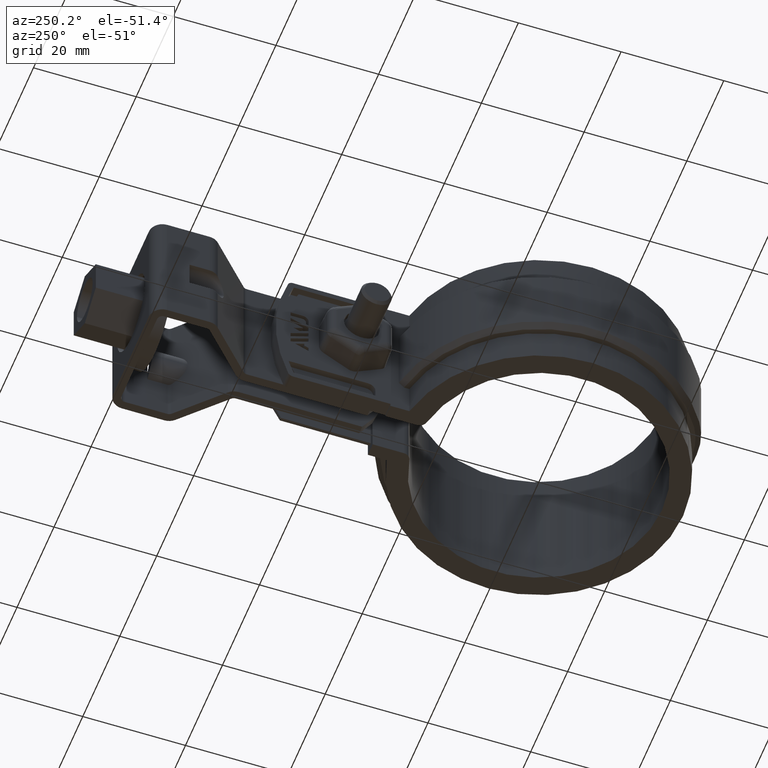
[diagram: clean part render]
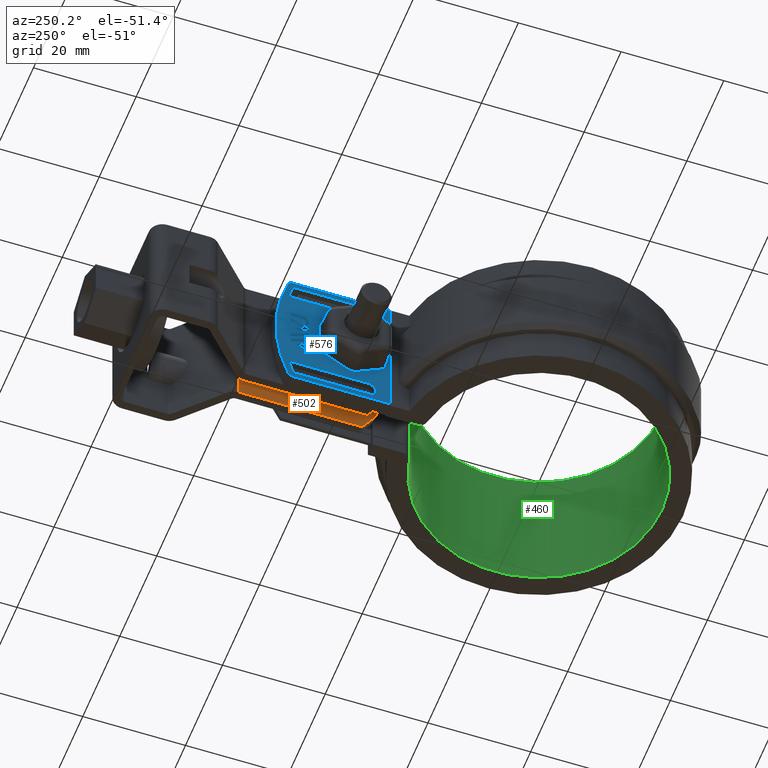
[diagram: same view with three faces highlighted in distinct colors, each labeled with its STEP entity id]
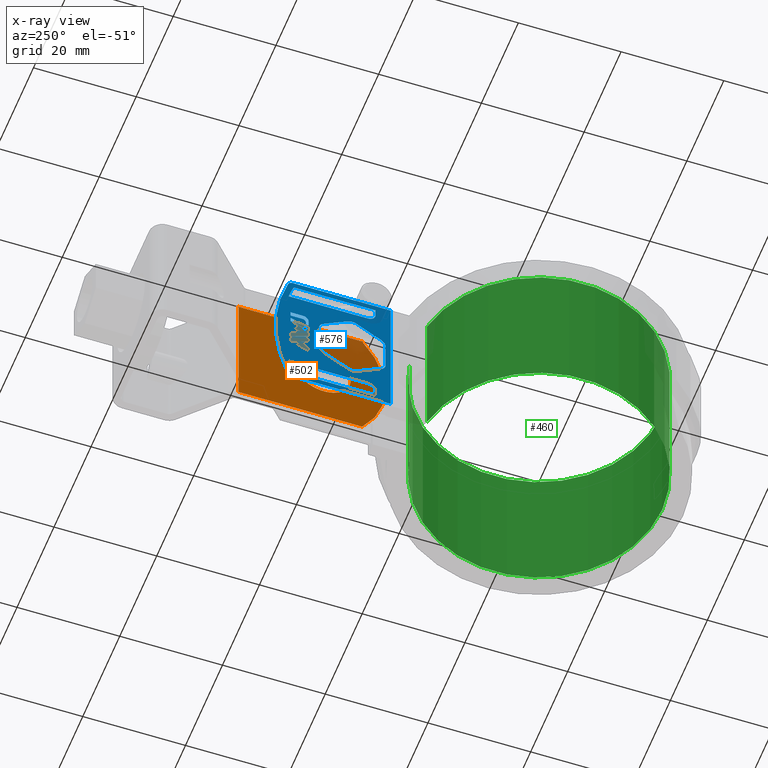
[diagram: x-ray of the same camera — body ghosted, the three highlighted faces saturated]
A machine part, auxiliary view with three faces highlighted in distinct colors.
The next image is the same camera in x-ray (body ghosted, the three faces saturated) — at least one of them is partly hidden behind the body in this view.
Their STEP definitions:

[orange] entity #502 — the highlighted planar face has unit normal (-1, -0, 0).
#502 = ADVANCED_FACE( '', ( #997, #998 ), #999, .T. );
#997 = FACE_OUTER_BOUND( '', #2338, .T. );
#998 = FACE_BOUND( '', #2339, .T. );
#999 = PLANE( '', #2340 );
#2338 = EDGE_LOOP( '', ( #5430, #5431, #5432, #5433 ) );
#2339 = EDGE_LOOP( '', ( #5434 ) );
#2340 = AXIS2_PLACEMENT_3D( '', #5435, #5436, #5437 );
#5430 = ORIENTED_EDGE( '', *, *, #7574, .F. );
#5431 = ORIENTED_EDGE( '', *, *, #7575, .F. );
#5432 = ORIENTED_EDGE( '', *, *, #7558, .T. );
#5433 = ORIENTED_EDGE( '', *, *, #7576, .F. );
#5434 = ORIENTED_EDGE( '', *, *, #7577, .F. );
#5435 = CARTESIAN_POINT( '', ( 1.39999999946985, 29.3998007421670, -25.0000000460597 ) );
#5436 = DIRECTION( '', ( -1.00000000000000, -3.46797421634620E-012, 2.03759782706166E-012 ) );
#5437 = DIRECTION( '', ( -3.46797421634620E-012, 1.00000000000000, 8.22979208362101E-040 ) );
#7558 = EDGE_CURVE( '', #8810, #8808, #8811, .F. );
#7574 = EDGE_CURVE( '', #8841, #8842, #8843, .T. );
#7575 = EDGE_CURVE( '', #8810, #8841, #8844, .F. );
#7576 = EDGE_CURVE( '', #8842, #8808, #8845, .T. );
#7577 = EDGE_CURVE( '', #8846, #8846, #8847, .T. );
#8808 = VERTEX_POINT( '', #12238 );
#8810 = VERTEX_POINT( '', #12240 );
#8811 = LINE( '', #12241, #12242 );
#8841 = VERTEX_POINT( '', #12281 );
#8842 = VERTEX_POINT( '', #12282 );
#8843 = LINE( '', #12283, #12284 );
#8844 = CIRCLE( '', #12285, 19.6111110000000 );
#8845 = LINE( '', #12286, #12287 );
#8846 = VERTEX_POINT( '', #12288 );
#8847 = CIRCLE( '', #12289, 5.25000000000000 );
#12238 = CARTESIAN_POINT( '', ( 1.39999999942177, 57.9539471291845, -6.05897380538416E-008 ) );
#12240 = CARTESIAN_POINT( '', ( 1.39999999950519, 33.8998007879764, -4.83496375949690E-008 ) );
#12241 = CARTESIAN_POINT( '', ( 1.39999999952079, 29.3998007548884, -4.60597844587074E-008 ) );
#12242 = VECTOR( '', #14111, 1000.00000000000 );
#12281 = CARTESIAN_POINT( '', ( 1.39999999945424, 33.8998007752552, -25.0000000483497 ) );
#12282 = CARTESIAN_POINT( '', ( 1.39999999937083, 57.9539471164631, -25.0000000605898 ) );
#12283 = CARTESIAN_POINT( '', ( 1.39999999930547, 76.7998007421666, -25.0000000701796 ) );
#12284 = VECTOR( '', #14139, 1000.00000000000 );
#12285 = AXIS2_PLACEMENT_3D( '', #14140, #14141, #14142 );
#12286 = CARTESIAN_POINT( '', ( 1.39999999937083, 57.9539471164631, -25.0000000605897 ) );
#12287 = VECTOR( '', #14143, 1000.00000000000 );
#12288 = CARTESIAN_POINT( '', ( 1.39999999947191, 36.1498007485275, -12.5000000521660 ) );
#12289 = AXIS2_PLACEMENT_3D( '', #14144, #14145, #14146 );
#14111 = DIRECTION( '', ( 3.46797421738304E-012, -1.00000000000000, 5.08856068393042E-010 ) );
#14139 = DIRECTION( '', ( -3.46797421738304E-012, 1.00000000000000, -5.08856068393042E-010 ) );
#14140 = CARTESIAN_POINT( '', ( 1.39999999942731, 49.0109117485275, -12.5000000560390 ) );
#14141 = DIRECTION( '', ( -1.00000000000000, -3.46797421634620E-012, 2.03759782706166E-012 ) );
#14142 = DIRECTION( '', ( 3.46797421634620E-012, -1.00000000000000, 0.000000000000000 ) );
#14143 = DIRECTION( '', ( 2.03759782529696E-012, 5.08856008656156E-010, 1.00000000000000 ) );
#14144 = CARTESIAN_POINT( '', ( 1.39999999945370, 41.3998007485275, -12.5000000521660 ) );
#14145 = DIRECTION( '', ( -1.00000000000000, -3.46797421634620E-012, 2.03759782706166E-012 ) );
#14146 = DIRECTION( '', ( 3.46797421634620E-012, -1.00000000000000, 0.000000000000000 ) );

[blue] entity #576 — the highlighted planar face has unit normal (-1, 0, -0).
#576 = ADVANCED_FACE( '', ( #1166, #1167, #1168, #1169, #1170, #1171, #1172, #1173, #1174 ), #1175, .T. );
#1166 = FACE_OUTER_BOUND( '', #2595, .T. );
#1167 = FACE_BOUND( '', #2596, .T. );
#1168 = FACE_BOUND( '', #2597, .T. );
#1169 = FACE_BOUND( '', #2598, .T. );
#1170 = FACE_BOUND( '', #2599, .T. );
#1171 = FACE_BOUND( '', #2600, .T. );
#1172 = FACE_BOUND( '', #2601, .T. );
#1173 = FACE_BOUND( '', #2602, .T. );
#1174 = FACE_BOUND( '', #2603, .T. );
#1175 = PLANE( '', #2604 );
#2595 = EDGE_LOOP( '', ( #6101, #6102, #6103, #6104, #6105, #6106 ) );
#2596 = EDGE_LOOP( '', ( #6107, #6108, #6109, #6110, #6111 ) );
#2597 = EDGE_LOOP( '', ( #6112, #6113, #6114, #6115 ) );
#2598 = EDGE_LOOP( '', ( #6116, #6117, #6118, #6119, #6120, #6121, #6122, #6123, #6124, #6125, #6126, #6127 ) );
#2599 = EDGE_LOOP( '', ( #6128, #6129, #6130, #6131, #6132 ) );
#2600 = EDGE_LOOP( '', ( #6133, #6134, #6135, #6136, #6137 ) );
#2601 = EDGE_LOOP( '', ( #6138, #6139, #6140, #6141, #6142, #6143, #6144, #6145, #6146, #6147, #6148, #6149, #6150, #6151, #6152, #6153, #6154, #6155, #6156, #6157, #6158, #6159, #6160, #6161, #6162, #6163, #6164, #6165, #6166, #6167, #6168, #6169, #6170, #6171, #6172, #6173, #6174, #6175, #6176, #6177 ) );
#2602 = EDGE_LOOP( '', ( #6178, #6179, #6180, #6181, #6182, #6183, #6184 ) );
#2603 = EDGE_LOOP( '', ( #6185, #6186, #6187, #6188 ) );
#2604 = AXIS2_PLACEMENT_3D( '', #6189, #6190, #6191 );
#6101 = ORIENTED_EDGE( '', *, *, #7850, .T. );
#6102 = ORIENTED_EDGE( '', *, *, #7851, .T. );
#6103 = ORIENTED_EDGE( '', *, *, #7852, .T. );
#6104 = ORIENTED_EDGE( '', *, *, #7853, .T. );
#6105 = ORIENTED_EDGE( '', *, *, #7854, .T. );
#6106 = ORIENTED_EDGE( '', *, *, #7855, .T. );
#6107 = ORIENTED_EDGE( '', *, *, #7856, .T. );
#6108 = ORIENTED_EDGE( '', *, *, #7782, .T. );
#6109 = ORIENTED_EDGE( '', *, *, #7785, .T. );
#6110 = ORIENTED_EDGE( '', *, *, #7857, .T. );
#6111 = ORIENTED_EDGE( '', *, *, #7858, .T. );
#6112 = ORIENTED_EDGE( '', *, *, #7859, .T. );
#6113 = ORIENTED_EDGE( '', *, *, #7860, .T. );
#6114 = ORIENTED_EDGE( '', *, *, #7861, .T. );
#6115 = ORIENTED_EDGE( '', *, *, #7862, .T. );
#6116 = ORIENTED_EDGE( '', *, *, #7863, .F. );
#6117 = ORIENTED_EDGE( '', *, *, #7864, .F. );
#6118 = ORIENTED_EDGE( '', *, *, #7865, .F. );
#6119 = ORIENTED_EDGE( '', *, *, #7866, .F. );
#6120 = ORIENTED_EDGE( '', *, *, #7867, .F. );
#6121 = ORIENTED_EDGE( '', *, *, #7868, .F. );
#6122 = ORIENTED_EDGE( '', *, *, #7869, .F. );
#6123 = ORIENTED_EDGE( '', *, *, #7870, .F. );
#6124 = ORIENTED_EDGE( '', *, *, #7871, .F. );
#6125 = ORIENTED_EDGE( '', *, *, #7872, .F. );
#6126 = ORIENTED_EDGE( '', *, *, #7873, .F. );
#6127 = ORIENTED_EDGE( '', *, *, #7874, .F. );
#6128 = ORIENTED_EDGE( '', *, *, #7837, .F. );
#6129 = ORIENTED_EDGE( '', *, *, #7846, .T. );
#6130 = ORIENTED_EDGE( '', *, *, #7849, .T. );
#6131 = ORIENTED_EDGE( '', *, *, #7875, .T. );
#6132 = ORIENTED_EDGE( '', *, *, #7876, .F. );
#6133 = ORIENTED_EDGE( '', *, *, #7843, .F. );
#6134 = ORIENTED_EDGE( '', *, *, #7877, .F. );
#6135 = ORIENTED_EDGE( '', *, *, #7878, .T. );
#6136 = ORIENTED_EDGE( '', *, *, #7879, .T. );
#6137 = ORIENTED_EDGE( '', *, *, #7880, .T. );
#6138 = ORIENTED_EDGE( '', *, *, #7881, .T. );
#6139 = ORIENTED_EDGE( '', *, *, #7882, .T. );
#6140 = ORIENTED_EDGE( '', *, *, #7883, .T. );
#6141 = ORIENTED_EDGE( '', *, *, #7884, .T. );
#6142 = ORIENTED_EDGE( '', *, *, #7885, .T. );
#6143 = ORIENTED_EDGE( '', *, *, #7886, .T. );
#6144 = ORIENTED_EDGE( '', *, *, #7887, .T. );
#6145 = ORIENTED_EDGE( '', *, *, #7888, .T. );
#6146 = ORIENTED_EDGE( '', *, *, #7889, .T. );
#6147 = ORIENTED_EDGE( '', *, *, #7890, .T. );
#6148 = ORIENTED_EDGE( '', *, *, #7891, .T. );
#6149 = ORIENTED_EDGE( '', *, *, #7892, .T. );
#6150 = ORIENTED_EDGE( '', *, *, #7893, .T. );
#6151 = ORIENTED_EDGE( '', *, *, #7894, .T. );
#6152 = ORIENTED_EDGE( '', *, *, #7895, .T. );
#6153 = ORIENTED_EDGE( '', *, *, #7896, .T. );
#6154 = ORIENTED_EDGE( '', *, *, #7897, .T. );
#6155 = ORIENTED_EDGE( '', *, *, #7898, .T. );
#6156 = ORIENTED_EDGE( '', *, *, #7899, .T. );
#6157 = ORIENTED_EDGE( '', *, *, #7900, .T. );
#6158 = ORIENTED_EDGE( '', *, *, #7901, .T. );
#6159 = ORIENTED_EDGE( '', *, *, #7779, .T. );
#6160 = ORIENTED_EDGE( '', *, *, #7902, .T. );
#6161 = ORIENTED_EDGE( '', *, *, #7903, .T. );
#6162 = ORIENTED_EDGE( '', *, *, #7904, .T. );
#6163 = ORIENTED_EDGE( '', *, *, #7905, .T. );
#6164 = ORIENTED_EDGE( '', *, *, #7906, .T. );
#6165 = ORIENTED_EDGE( '', *, *, #7907, .T. );
#6166 = ORIENTED_EDGE( '', *, *, #7908, .T. );
#6167 = ORIENTED_EDGE( '', *, *, #7909, .T. );
#6168 = ORIENTED_EDGE( '', *, *, #7910, .T. );
#6169 = ORIENTED_EDGE( '', *, *, #7911, .T. );
#6170 = ORIENTED_EDGE( '', *, *, #7912, .T. );
#6171 = ORIENTED_EDGE( '', *, *, #7913, .T. );
#6172 = ORIENTED_EDGE( '', *, *, #7914, .T. );
#6173 = ORIENTED_EDGE( '', *, *, #7915, .T. );
#6174 = ORIENTED_EDGE( '', *, *, #7916, .T. );
#6175 = ORIENTED_EDGE( '', *, *, #7917, .T. );
#6176 = ORIENTED_EDGE( '', *, *, #7918, .T. );
#6177 = ORIENTED_EDGE( '', *, *, #7919, .T. );
#6178 = ORIENTED_EDGE( '', *, *, #7920, .T. );
#6179 = ORIENTED_EDGE( '', *, *, #7921, .T. );
#6180 = ORIENTED_EDGE( '', *, *, #7922, .T. );
#6181 = ORIENTED_EDGE( '', *, *, #7923, .T. );
#6182 = ORIENTED_EDGE( '', *, *, #7924, .T. );
#6183 = ORIENTED_EDGE( '', *, *, #7925, .T. );
#6184 = ORIENTED_EDGE( '', *, *, #7926, .T. );
#6185 = ORIENTED_EDGE( '', *, *, #7927, .T. );
#6186 = ORIENTED_EDGE( '', *, *, #7928, .T. );
#6187 = ORIENTED_EDGE( '', *, *, #7929, .T. );
#6188 = ORIENTED_EDGE( '', *, *, #7930, .T. );
#6189 = CARTESIAN_POINT( '', ( -6.29999999999997, 17.0998007960217, -12.4999999999997 ) );
#6190 = DIRECTION( '', ( -1.00000000000000, 6.90531165066484E-016, -3.52863551097454E-016 ) );
#6191 = DIRECTION( '', ( -3.52863551097454E-016, 3.40458149973542E-047, 1.00000000000000 ) );
#7779 = EDGE_CURVE( '', #9201, #9199, #9202, .T. );
#7782 = EDGE_CURVE( '', #9206, #9204, #9207, .T. );
#7785 = EDGE_CURVE( '', #9204, #9209, #9211, .T. );
#7837 = EDGE_CURVE( '', #9303, #9305, #9306, .T. );
#7843 = EDGE_CURVE( '', #9314, #9301, #9316, .T. );
#7846 = EDGE_CURVE( '', #9303, #9320, #9321, .T. );
#7849 = EDGE_CURVE( '', #9320, #9323, #9325, .T. );
#7850 = EDGE_CURVE( '', #9326, #9327, #9328, .T. );
#7851 = EDGE_CURVE( '', #9327, #9329, #9330, .T. );
#7852 = EDGE_CURVE( '', #9329, #9331, #9332, .T. );
#7853 = EDGE_CURVE( '', #9331, #9333, #9334, .T. );
#7854 = EDGE_CURVE( '', #9333, #9335, #9336, .T. );
#7855 = EDGE_CURVE( '', #9335, #9326, #9337, .T. );
#7856 = EDGE_CURVE( '', #9338, #9206, #9339, .T. );
#7857 = EDGE_CURVE( '', #9209, #9340, #9341, .T. );
#7858 = EDGE_CURVE( '', #9340, #9338, #9342, .T. );
#7859 = EDGE_CURVE( '', #9343, #9344, #9345, .T. );
#7860 = EDGE_CURVE( '', #9344, #9346, #9347, .T. );
#7861 = EDGE_CURVE( '', #9346, #9348, #9349, .T. );
#7862 = EDGE_CURVE( '', #9348, #9343, #9350, .T. );
#7863 = EDGE_CURVE( '', #9351, #9352, #9353, .T. );
#7864 = EDGE_CURVE( '', #9354, #9351, #9355, .T. );
#7865 = EDGE_CURVE( '', #9356, #9354, #9357, .T. );
#7866 = EDGE_CURVE( '', #9358, #9356, #9359, .T. );
#7867 = EDGE_CURVE( '', #9360, #9358, #9361, .T. );
#7868 = EDGE_CURVE( '', #9362, #9360, #9363, .T. );
#7869 = EDGE_CURVE( '', #9364, #9362, #9365, .T. );
#7870 = EDGE_CURVE( '', #9366, #9364, #9367, .T. );
#7871 = EDGE_CURVE( '', #9368, #9366, #9369, .T. );
#7872 = EDGE_CURVE( '', #9370, #9368, #9371, .T. );
#7873 = EDGE_CURVE( '', #9372, #9370, #9373, .T. );
#7874 = EDGE_CURVE( '', #9352, #9372, #9374, .T. );
#7875 = EDGE_CURVE( '', #9323, #9375, #9376, .T. );
#7876 = EDGE_CURVE( '', #9305, #9375, #9377, .T. );
#7877 = EDGE_CURVE( '', #9378, #9314, #9379, .T. );
#7878 = EDGE_CURVE( '', #9378, #9380, #9381, .T. );
#7879 = EDGE_CURVE( '', #9380, #9382, #9383, .T. );
#7880 = EDGE_CURVE( '', #9382, #9301, #9384, .T. );
#7881 = EDGE_CURVE( '', #9385, #9386, #9387, .T. );
#7882 = EDGE_CURVE( '', #9386, #9388, #9389, .T. );
#7883 = EDGE_CURVE( '', #9388, #9390, #9391, .T. );
#7884 = EDGE_CURVE( '', #9390, #9392, #9393, .T. );
#7885 = EDGE_CURVE( '', #9392, #9394, #9395, .T. );
#7886 = EDGE_CURVE( '', #9394, #9396, #9397, .T. );
#7887 = EDGE_CURVE( '', #9396, #9398, #9399, .T. );
#7888 = EDGE_CURVE( '', #9398, #9400, #9401, .T. );
#7889 = EDGE_CURVE( '', #9400, #9402, #9403, .T. );
#7890 = EDGE_CURVE( '', #9402, #9404, #9405, .T. );
#7891 = EDGE_CURVE( '', #9404, #9406, #9407, .T. );
#7892 = EDGE_CURVE( '', #9406, #9408, #9409, .T. );
#7893 = EDGE_CURVE( '', #9408, #9410, #9411, .T. );
#7894 = EDGE_CURVE( '', #9410, #9412, #9413, .T. );
#7895 = EDGE_CURVE( '', #9412, #9414, #9415, .T. );
#7896 = EDGE_CURVE( '', #9414, #9416, #9417, .T. );
#7897 = EDGE_CURVE( '', #9416, #9418, #9419, .T. );
#7898 = EDGE_CURVE( '', #9418, #9420, #9421, .T. );
#7899 = EDGE_CURVE( '', #9420, #9422, #9423, .T. );
#7900 = EDGE_CURVE( '', #9422, #9424, #9425, .T. );
#7901 = EDGE_CURVE( '', #9424, #9201, #9426, .T. );
#7902 = EDGE_CURVE( '', #9199, #9427, #9428, .T. );
#7903 = EDGE_CURVE( '', #9427, #9429, #9430, .T. );
#7904 = EDGE_CURVE( '', #9429, #9431, #9432, .T. );
#7905 = EDGE_CURVE( '', #9431, #9433, #9434, .T. );
#7906 = EDGE_CURVE( '', #9433, #9435, #9436, .T. );
#7907 = EDGE_CURVE( '', #9435, #9437, #9438, .T. );
#7908 = EDGE_CURVE( '', #9437, #9439, #9440, .T. );
#7909 = EDGE_CURVE( '', #9439, #9441, #9442, .T. );
#7910 = EDGE_CURVE( '', #9441, #9443, #9444, .T. );
#7911 = EDGE_CURVE( '', #9443, #9445, #9446, .T. );
#7912 = EDGE_CURVE( '', #9445, #9447, #9448, .T. );
#7913 = EDGE_CURVE( '', #9447, #9449, #9450, .T. );
#7914 = EDGE_CURVE( '', #9449, #9451, #9452, .T. );
#7915 = EDGE_CURVE( '', #9451, #9453, #9454, .T. );
#7916 = EDGE_CURVE( '', #9453, #9455, #9456, .T. );
#7917 = EDGE_CURVE( '', #9455, #9457, #9458, .T. );
#7918 = EDGE_CURVE( '', #9457, #9459, #9460, .T. );
#7919 = EDGE_CURVE( '', #9459, #9385, #9461, .T. );
#7920 = EDGE_CURVE( '', #9462, #9463, #9464, .T. );
#7921 = EDGE_CURVE( '', #9463, #9465, #9466, .T. );
#7922 = EDGE_CURVE( '', #9465, #9467, #9468, .T. );
#7923 = EDGE_CURVE( '', #9467, #9469, #9470, .T. );
#7924 = EDGE_CURVE( '', #9469, #9471, #9472, .T. );
#7925 = EDGE_CURVE( '', #9471, #9473, #9474, .T. );
#7926 = EDGE_CURVE( '', #9473, #9462, #9475, .T. );
#7927 = EDGE_CURVE( '', #9476, #9477, #9478, .T. );
#7928 = EDGE_CURVE( '', #9477, #9479, #9480, .T. );
#7929 = EDGE_CURVE( '', #9479, #9481, #9482, .T. );
#7930 = EDGE_CURVE( '', #9481, #9476, #9483, .T. );
#9199 = VERTEX_POINT( '', #12845 );
#9201 = VERTEX_POINT( '', #12848 );
#9202 = LINE( '', #12849, #12850 );
#9204 = VERTEX_POINT( '', #12853 );
#9206 = VERTEX_POINT( '', #12856 );
#9207 = LINE( '', #12857, #12858 );
#9209 = VERTEX_POINT( '', #12861 );
#9211 = LINE( '', #12864, #12865 );
#9301 = VERTEX_POINT( '', #12978 );
#9303 = VERTEX_POINT( '', #12981 );
#9305 = VERTEX_POINT( '', #12984 );
#9306 = CIRCLE( '', #12985, 35.1999999999984 );
#9314 = VERTEX_POINT( '', #12995 );
#9316 = CIRCLE( '', #12998, 35.1999999999985 );
#9320 = VERTEX_POINT( '', #13004 );
#9321 = LINE( '', #13005, #13006 );
#9323 = VERTEX_POINT( '', #13009 );
#9325 = CIRCLE( '', #13012, 1.49999999999994 );
#9326 = VERTEX_POINT( '', #13013 );
#9327 = VERTEX_POINT( '', #13014 );
#9328 = CIRCLE( '', #13015, 0.999999999999934 );
#9329 = VERTEX_POINT( '', #13016 );
#9330 = LINE( '', #13017, #13018 );
#9331 = VERTEX_POINT( '', #13019 );
#9332 = LINE( '', #13020, #13021 );
#9333 = VERTEX_POINT( '', #13022 );
#9334 = LINE( '', #13023, #13024 );
#9335 = VERTEX_POINT( '', #13025 );
#9336 = CIRCLE( '', #13026, 0.999999999999934 );
#9337 = CIRCLE( '', #13027, 36.3999999999984 );
#9338 = VERTEX_POINT( '', #13028 );
#9339 = LINE( '', #13029, #13030 );
#9340 = VERTEX_POINT( '', #13031 );
#9341 = LINE( '', #13032, #13033 );
#9342 = LINE( '', #13034, #13035 );
#9343 = VERTEX_POINT( '', #13036 );
#9344 = VERTEX_POINT( '', #13037 );
#9345 = LINE( '', #13038, #13039 );
#9346 = VERTEX_POINT( '', #13040 );
#9347 = LINE( '', #13041, #13042 );
#9348 = VERTEX_POINT( '', #13043 );
#9349 = LINE( '', #13044, #13045 );
#9350 = LINE( '', #13046, #13047 );
#9351 = VERTEX_POINT( '', #13048 );
#9352 = VERTEX_POINT( '', #13049 );
#9353 = LINE( '', #13050, #13051 );
#9354 = VERTEX_POINT( '', #13052 );
#9355 = CIRCLE( '', #13053, 1.77252045227169 );
#9356 = VERTEX_POINT( '', #13054 );
#9357 = LINE( '', #13055, #13056 );
#9358 = VERTEX_POINT( '', #13057 );
#9359 = CIRCLE( '', #13058, 1.77252045227169 );
#9360 = VERTEX_POINT( '', #13059 );
#9361 = LINE( '', #13060, #13061 );
#9362 = VERTEX_POINT( '', #13062 );
#9363 = CIRCLE( '', #13063, 1.77252045227170 );
#9364 = VERTEX_POINT( '', #13064 );
#9365 = LINE( '', #13065, #13066 );
#9366 = VERTEX_POINT( '', #13067 );
#9367 = CIRCLE( '', #13068, 1.77252045227170 );
#9368 = VERTEX_POINT( '', #13069 );
#9369 = LINE( '', #13070, #13071 );
#9370 = VERTEX_POINT( '', #13072 );
#9371 = CIRCLE( '', #13073, 1.77252045227169 );
#9372 = VERTEX_POINT( '', #13074 );
#9373 = LINE( '', #13075, #13076 );
#9374 = CIRCLE( '', #13077, 1.77252045227170 );
#9375 = VERTEX_POINT( '', #13078 );
#9376 = LINE( '', #13079, #13080 );
#9377 = LINE( '', #13081, #13082 );
#9378 = VERTEX_POINT( '', #13083 );
#9379 = LINE( '', #13084, #13085 );
#9380 = VERTEX_POINT( '', #13086 );
#9381 = LINE( '', #13087, #13088 );
#9382 = VERTEX_POINT( '', #13089 );
#9383 = CIRCLE( '', #13090, 1.49999999999990 );
#9384 = LINE( '', #13091, #13092 );
#9385 = VERTEX_POINT( '', #13093 );
#9386 = VERTEX_POINT( '', #13094 );
#9387 = LINE( '', #13095, #13096 );
#9388 = VERTEX_POINT( '', #13097 );
#9389 = LINE( '', #13098, #13099 );
#9390 = VERTEX_POINT( '', #13100 );
#9391 = LINE( '', #13101, #13102 );
#9392 = VERTEX_POINT( '', #13103 );
#9393 = LINE( '', #13104, #13105 );
#9394 = VERTEX_POINT( '', #13106 );
#9395 = LINE( '', #13107, #13108 );
#9396 = VERTEX_POINT( '', #13109 );
#9397 = LINE( '', #13110, #13111 );
#9398 = VERTEX_POINT( '', #13112 );
#9399 = LINE( '', #13113, #13114 );
#9400 = VERTEX_POINT( '', #13115 );
#9401 = LINE( '', #13116, #13117 );
#9402 = VERTEX_POINT( '', #13118 );
#9403 = LINE( '', #13119, #13120 );
#9404 = VERTEX_POINT( '', #13121 );
#9405 = LINE( '', #13122, #13123 );
#9406 = VERTEX_POINT( '', #13124 );
#9407 = LINE( '', #13125, #13126 );
#9408 = VERTEX_POINT( '', #13127 );
#9409 = LINE( '', #13128, #13129 );
#9410 = VERTEX_POINT( '', #13130 );
#9411 = LINE( '', #13131, #13132 );
#9412 = VERTEX_POINT( '', #13133 );
#9413 = LINE( '', #13134, #13135 );
#9414 = VERTEX_POINT( '', #13136 );
#9415 = LINE( '', #13137, #13138 );
#9416 = VERTEX_POINT( '', #13139 );
#9417 = LINE( '', #13140, #13141 );
#9418 = VERTEX_POINT( '', #13142 );
#9419 = LINE( '', #13143, #13144 );
#9420 = VERTEX_POINT( '', #13145 );
#9421 = LINE( '', #13146, #13147 );
#9422 = VERTEX_POINT( '', #13148 );
#9423 = LINE( '', #13149, #13150 );
#9424 = VERTEX_POINT( '', #13151 );
#9425 = LINE( '', #13152, #13153 );
#9426 = LINE( '', #13154, #13155 );
#9427 = VERTEX_POINT( '', #13156 );
#9428 = LINE( '', #13157, #13158 );
#9429 = VERTEX_POINT( '', #13159 );
#9430 = LINE( '', #13160, #13161 );
#9431 = VERTEX_POINT( '', #13162 );
#9432 = LINE( '', #13163, #13164 );
#9433 = VERTEX_POINT( '', #13165 );
#9434 = LINE( '', #13166, #13167 );
#9435 = VERTEX_POINT( '', #13168 );
#9436 = LINE( '', #13169, #13170 );
#9437 = VERTEX_POINT( '', #13171 );
#9438 = LINE( '', #13172, #13173 );
#9439 = VERTEX_POINT( '', #13174 );
#9440 = LINE( '', #13175, #13176 );
#9441 = VERTEX_POINT( '', #13177 );
#9442 = LINE( '', #13178, #13179 );
#9443 = VERTEX_POINT( '', #13180 );
#9444 = LINE( '', #13181, #13182 );
#9445 = VERTEX_POINT( '', #13183 );
#9446 = LINE( '', #13184, #13185 );
#9447 = VERTEX_POINT( '', #13186 );
#9448 = LINE( '', #13187, #13188 );
#9449 = VERTEX_POINT( '', #13189 );
#9450 = LINE( '', #13190, #13191 );
#9451 = VERTEX_POINT( '', #13192 );
#9452 = LINE( '', #13193, #13194 );
#9453 = VERTEX_POINT( '', #13195 );
#9454 = LINE( '', #13196, #13197 );
#9455 = VERTEX_POINT( '', #13198 );
#9456 = LINE( '', #13199, #13200 );
#9457 = VERTEX_POINT( '', #13201 );
#9458 = LINE( '', #13202, #13203 );
#9459 = VERTEX_POINT( '', #13204 );
#9460 = LINE( '', #13205, #13206 );
#9461 = CIRCLE( '', #13207, 1.16712912069185 );
#9462 = VERTEX_POINT( '', #13208 );
#9463 = VERTEX_POINT( '', #13209 );
#9464 = LINE( '', #13210, #13211 );
#9465 = VERTEX_POINT( '', #13212 );
#9466 = LINE( '', #13213, #13214 );
#9467 = VERTEX_POINT( '', #13215 );
#9468 = LINE( '', #13216, #13217 );
#9469 = VERTEX_POINT( '', #13218 );
#9470 = LINE( '', #13219, #13220 );
#9471 = VERTEX_POINT( '', #13221 );
#9472 = LINE( '', #13222, #13223 );
#9473 = VERTEX_POINT( '', #13224 );
#9474 = LINE( '', #13225, #13226 );
#9475 = LINE( '', #13227, #13228 );
#9476 = VERTEX_POINT( '', #13229 );
#9477 = VERTEX_POINT( '', #13230 );
#9478 = LINE( '', #13231, #13232 );
#9479 = VERTEX_POINT( '', #13233 );
#9480 = LINE( '', #13234, #13235 );
#9481 = VERTEX_POINT( '', #13236 );
#9482 = LINE( '', #13237, #13238 );
#9483 = LINE( '', #13239, #13240 );
#12845 = CARTESIAN_POINT( '', ( -6.29999999999995, 47.9039280947944, -8.66098078399988 ) );
#12848 = CARTESIAN_POINT( '', ( -6.29999999999995, 47.8749989427944, -8.68534852199988 ) );
#12849 = CARTESIAN_POINT( '', ( -6.29999999999996, 27.9930697799814, -25.4323876600252 ) );
#12850 = VECTOR( '', #14420, 1000.00000000000 );
#12853 = CARTESIAN_POINT( '', ( -6.29999999999995, 47.1034929087944, -16.5315944439995 ) );
#12856 = CARTESIAN_POINT( '', ( -6.29999999999995, 47.9114988127943, -16.2049013519996 ) );
#12857 = CARTESIAN_POINT( '', ( -6.29999999999996, 22.7165126806503, -26.3917426630097 ) );
#12858 = VECTOR( '', #14423, 1000.00000000000 );
#12861 = CARTESIAN_POINT( '', ( -6.29999999999995, 47.1034929087944, -17.4353519199995 ) );
#12864 = CARTESIAN_POINT( '', ( -6.29999999999995, 47.1034929087944, -12.4999999999997 ) );
#12865 = VECTOR( '', #14426, 1000.00000000000 );
#12978 = CARTESIAN_POINT( '', ( -6.29999999999995, 50.9936055396596, -3.00000000000014 ) );
#12981 = CARTESIAN_POINT( '', ( -6.29999999999994, 50.9936055396596, -21.9999999999993 ) );
#12984 = CARTESIAN_POINT( '', ( -6.29999999999994, 50.0055753652346, -24.9999999999992 ) );
#12985 = AXIS2_PLACEMENT_3D( '', #14530, #14531, #14532 );
#12995 = CARTESIAN_POINT( '', ( -6.29999999999995, 50.0055753652346, -2.74629745673528E-013 ) );
#12998 = AXIS2_PLACEMENT_3D( '', #14542, #14543, #14544 );
#13004 = CARTESIAN_POINT( '', ( -6.29999999999995, 35.5998007960205, -21.9999999999993 ) );
#13005 = CARTESIAN_POINT( '', ( -6.29999999999994, 51.8237118660588, -21.9999999999993 ) );
#13006 = VECTOR( '', #14547, 1000.00000000000 );
#13009 = CARTESIAN_POINT( '', ( -6.29999999999996, 34.0998007960206, -23.4999999999992 ) );
#13012 = AXIS2_PLACEMENT_3D( '', #14550, #14551, #14552 );
#13013 = CARTESIAN_POINT( '', ( -6.29999999999994, 51.0766879988200, -25.5587570621460 ) );
#13014 = CARTESIAN_POINT( '', ( -6.29999999999994, 50.1432570317101, -26.1999999999991 ) );
#13015 = AXIS2_PLACEMENT_3D( '', #14553, #14554, #14555 );
#13016 = CARTESIAN_POINT( '', ( -6.29999999999996, 31.0998007960208, -26.1999999999991 ) );
#13017 = CARTESIAN_POINT( '', ( -6.29999999999995, 34.0998007960206, -26.1999999999991 ) );
#13018 = VECTOR( '', #14556, 1000.00000000000 );
#13019 = CARTESIAN_POINT( '', ( -6.29999999999997, 31.0998007960208, 1.19999999999964 ) );
#13020 = CARTESIAN_POINT( '', ( -6.29999999999996, 31.0998007960208, -26.1999999999991 ) );
#13021 = VECTOR( '', #14557, 1000.00000000000 );
#13022 = CARTESIAN_POINT( '', ( -6.29999999999995, 50.1432570317101, 1.19999999999967 ) );
#13023 = CARTESIAN_POINT( '', ( -6.29999999999997, 31.0998007960208, 1.19999999999966 ) );
#13024 = VECTOR( '', #14558, 1000.00000000000 );
#13025 = CARTESIAN_POINT( '', ( -6.29999999999995, 51.0766879988200, 0.558757062146593 ) );
#13026 = AXIS2_PLACEMENT_3D( '', #14559, #14560, #14561 );
#13027 = AXIS2_PLACEMENT_3D( '', #14562, #14563, #14564 );
#13028 = CARTESIAN_POINT( '', ( -6.29999999999995, 47.9114988127943, -15.6427309999996 ) );
#13029 = CARTESIAN_POINT( '', ( -6.29999999999995, 47.9114988127943, -12.4999999999997 ) );
#13030 = VECTOR( '', #14565, 1000.00000000000 );
#13031 = CARTESIAN_POINT( '', ( -6.29999999999995, 49.7265300227942, -16.3757128079995 ) );
#13032 = CARTESIAN_POINT( '', ( -6.29999999999996, 23.0233210667912, -27.1631181690089 ) );
#13033 = VECTOR( '', #14566, 1000.00000000000 );
#13034 = CARTESIAN_POINT( '', ( -6.29999999999997, 20.3289794534961, -4.50381239750710 ) );
#13035 = VECTOR( '', #14567, 1000.00000000000 );
#13036 = CARTESIAN_POINT( '', ( -6.29999999999995, 50.6019317327942, -14.5449628859996 ) );
#13037 = CARTESIAN_POINT( '', ( -6.29999999999995, 50.6019317327942, -13.6409432239997 ) );
#13038 = CARTESIAN_POINT( '', ( -6.29999999999995, 50.6019317327942, -12.4999999999997 ) );
#13039 = VECTOR( '', #14568, 1000.00000000000 );
#13040 = CARTESIAN_POINT( '', ( -6.29999999999995, 47.1034929087944, -12.2273304499997 ) );
#13041 = CARTESIAN_POINT( '', ( -6.29999999999997, 21.4057124752295, -1.84363860576139 ) );
#13042 = VECTOR( '', #14569, 1000.00000000000 );
#13043 = CARTESIAN_POINT( '', ( -6.29999999999995, 47.1034929087944, -13.1313508899997 ) );
#13044 = CARTESIAN_POINT( '', ( -6.29999999999995, 47.1034929087944, -12.4999999999997 ) );
#13045 = VECTOR( '', #14570, 1000.00000000000 );
#13046 = CARTESIAN_POINT( '', ( -6.29999999999997, 21.0916916480549, -2.62077856056626 ) );
#13047 = VECTOR( '', #14571, 1000.00000000000 );
#13048 = CARTESIAN_POINT( '', ( -6.29999999999995, 45.0723212482916, -9.78645373480859 ) );
#13049 = CARTESIAN_POINT( '', ( -6.29999999999995, 45.0723212482916, -15.2135462651908 ) );
#13050 = CARTESIAN_POINT( '', ( -6.29999999999995, 45.0723212482916, -15.2135462651908 ) );
#13051 = VECTOR( '', #14572, 1000.00000000000 );
#13052 = CARTESIAN_POINT( '', ( -6.29999999999996, 44.1860610221558, -8.25140599441378 ) );
#13053 = AXIS2_PLACEMENT_3D( '', #14573, #14574, #14575 );
#13054 = CARTESIAN_POINT( '', ( -6.29999999999996, 39.4860610221561, -5.53785972922267 ) );
#13055 = CARTESIAN_POINT( '', ( -6.29999999999995, 46.5360610221556, -9.60817912700934 ) );
#13056 = VECTOR( '', #14576, 1000.00000000000 );
#13057 = CARTESIAN_POINT( '', ( -6.29999999999996, 37.7135405698844, -5.53785972922266 ) );
#13058 = AXIS2_PLACEMENT_3D( '', #14577, #14578, #14579 );
#13059 = CARTESIAN_POINT( '', ( -6.29999999999996, 33.0135405698847, -8.25140599441378 ) );
#13060 = CARTESIAN_POINT( '', ( -6.29999999999996, 37.7135405698844, -5.53785972922266 ) );
#13061 = VECTOR( '', #14580, 1000.00000000000 );
#13062 = CARTESIAN_POINT( '', ( -6.29999999999996, 32.1272803437488, -9.78645373480859 ) );
#13063 = AXIS2_PLACEMENT_3D( '', #14581, #14582, #14583 );
#13064 = CARTESIAN_POINT( '', ( -6.29999999999996, 32.1272803437489, -15.2135462651908 ) );
#13065 = CARTESIAN_POINT( '', ( -6.29999999999996, 32.1272803437488, -15.2135462651908 ) );
#13066 = VECTOR( '', #14584, 1000.00000000000 );
#13067 = CARTESIAN_POINT( '', ( -6.29999999999996, 33.0135405698847, -16.7485940055856 ) );
#13068 = AXIS2_PLACEMENT_3D( '', #14585, #14586, #14587 );
#13069 = CARTESIAN_POINT( '', ( -6.29999999999996, 37.7135405698844, -19.4621402707768 ) );
#13070 = CARTESIAN_POINT( '', ( -6.29999999999995, 40.0635405698842, -20.8189134033723 ) );
#13071 = VECTOR( '', #14588, 1000.00000000000 );
#13072 = CARTESIAN_POINT( '', ( -6.29999999999995, 39.4860610221561, -19.4621402707768 ) );
#13073 = AXIS2_PLACEMENT_3D( '', #14589, #14590, #14591 );
#13074 = CARTESIAN_POINT( '', ( -6.29999999999995, 44.1860610221558, -16.7485940055857 ) );
#13075 = CARTESIAN_POINT( '', ( -6.29999999999995, 44.1860610221558, -16.7485940055857 ) );
#13076 = VECTOR( '', #14592, 1000.00000000000 );
#13077 = AXIS2_PLACEMENT_3D( '', #14593, #14594, #14595 );
#13078 = CARTESIAN_POINT( '', ( -6.29999999999996, 34.0998007960206, -24.9999999999992 ) );
#13079 = CARTESIAN_POINT( '', ( -6.29999999999996, 34.0998007960206, -23.4999999999992 ) );
#13080 = VECTOR( '', #14596, 1000.00000000000 );
#13081 = CARTESIAN_POINT( '', ( -6.29999999999995, 49.7915428725746, -24.9999999999992 ) );
#13082 = VECTOR( '', #14597, 1000.00000000000 );
#13083 = CARTESIAN_POINT( '', ( -6.29999999999996, 34.0998007960206, -2.64647331647496E-013 ) );
#13084 = CARTESIAN_POINT( '', ( -6.29999999999997, 31.0998007960208, -2.64705011203072E-013 ) );
#13085 = VECTOR( '', #14598, 1000.00000000000 );
#13086 = CARTESIAN_POINT( '', ( -6.29999999999996, 34.0998007960206, -1.50000000000022 ) );
#13087 = CARTESIAN_POINT( '', ( -6.29999999999996, 34.0998007960206, 1.19999999999965 ) );
#13088 = VECTOR( '', #14599, 1000.00000000000 );
#13089 = CARTESIAN_POINT( '', ( -6.29999999999996, 35.5998007960205, -3.00000000000015 ) );
#13090 = AXIS2_PLACEMENT_3D( '', #14600, #14601, #14602 );
#13091 = CARTESIAN_POINT( '', ( -6.29999999999996, 35.5998007960205, -3.00000000000015 ) );
#13092 = VECTOR( '', #14603, 1000.00000000000 );
#13093 = CARTESIAN_POINT( '', ( -6.29999999999995, 47.1034929159330, -8.74297971174853 ) );
#13094 = CARTESIAN_POINT( '', ( -6.29999999999995, 47.1034929087944, -9.97073444799983 ) );
#13095 = CARTESIAN_POINT( '', ( -6.29999999999995, 47.1034928940884, -12.5000001744512 ) );
#13096 = VECTOR( '', #14604, 1000.00000000000 );
#13097 = CARTESIAN_POINT( '', ( -6.29999999999995, 47.6122325547944, -9.76519073799984 ) );
#13098 = CARTESIAN_POINT( '', ( -6.29999999999997, 20.4317197255921, -20.7468067581847 ) );
#13099 = VECTOR( '', #14605, 1000.00000000000 );
#13100 = CARTESIAN_POINT( '', ( -6.29999999999995, 47.6122325547944, -9.26826424399986 ) );
#13101 = CARTESIAN_POINT( '', ( -6.29999999999995, 47.6122325547944, -12.4999999999997 ) );
#13102 = VECTOR( '', #14606, 1000.00000000000 );
#13103 = CARTESIAN_POINT( '', ( -6.29999999999995, 47.6129296427944, -9.23547076599986 ) );
#13104 = CARTESIAN_POINT( '', ( -6.29999999999995, 47.5297858620148, -13.1468474441680 ) );
#13105 = VECTOR( '', #14607, 1000.00000000000 );
#13106 = CARTESIAN_POINT( '', ( -6.29999999999995, 47.6150131267944, -9.20269440399987 ) );
#13107 = CARTESIAN_POINT( '', ( -6.29999999999995, 47.2834507066054, -14.4186739410082 ) );
#13108 = VECTOR( '', #14608, 1000.00000000000 );
#13109 = CARTESIAN_POINT( '', ( -6.29999999999995, 47.6184721147944, -9.17002851799987 ) );
#13110 = CARTESIAN_POINT( '', ( -6.29999999999995, 46.9313700221149, -15.6588624283450 ) );
#13111 = VECTOR( '', #14609, 1000.00000000000 );
#13112 = CARTESIAN_POINT( '', ( -6.29999999999995, 47.6232949367944, -9.13756568999987 ) );
#13113 = CARTESIAN_POINT( '', ( -6.29999999999995, 46.4753964049582, -16.8641690356065 ) );
#13114 = VECTOR( '', #14610, 1000.00000000000 );
#13115 = CARTESIAN_POINT( '', ( -6.29999999999995, 47.6294699227944, -9.10540005799986 ) );
#13116 = CARTESIAN_POINT( '', ( -6.29999999999995, 45.9158002466206, -18.0319414579942 ) );
#13117 = VECTOR( '', #14611, 1000.00000000000 );
#13118 = CARTESIAN_POINT( '', ( -6.29999999999995, 47.6383717987944, -9.06837192599987 ) );
#13119 = CARTESIAN_POINT( '', ( -6.29999999999995, 45.1898789160667, -19.2530922773809 ) );
#13120 = VECTOR( '', #14612, 1000.00000000000 );
#13121 = CARTESIAN_POINT( '', ( -6.29999999999995, 47.6491144227944, -9.03175224399987 ) );
#13122 = CARTESIAN_POINT( '', ( -6.29999999999995, 44.2916067817819, -20.4768947088614 ) );
#13123 = VECTOR( '', #14613, 1000.00000000000 );
#13124 = CARTESIAN_POINT( '', ( -6.29999999999995, 47.6616410007944, -8.99566860399987 ) );
#13125 = CARTESIAN_POINT( '', ( -6.29999999999995, 43.2888970231539, -21.5916480886844 ) );
#13126 = VECTOR( '', #14614, 1000.00000000000 );
#13127 = CARTESIAN_POINT( '', ( -6.29999999999995, 47.6758939607944, -8.96024704199987 ) );
#13128 = CARTESIAN_POINT( '', ( -6.29999999999995, 42.1893124017481, -22.5955402626224 ) );
#13129 = VECTOR( '', #14615, 1000.00000000000 );
#13130 = CARTESIAN_POINT( '', ( -6.29999999999995, 47.6918157307944, -8.92561592799987 ) );
#13131 = CARTESIAN_POINT( '', ( -6.29999999999995, 40.9972105687116, -23.4869137330235 ) );
#13132 = VECTOR( '', #14616, 1000.00000000000 );
#13133 = CARTESIAN_POINT( '', ( -6.29999999999995, 47.7093487387944, -8.89190129799988 ) );
#13134 = CARTESIAN_POINT( '', ( -6.29999999999995, 39.7164646084517, -24.2616046077486 ) );
#13135 = VECTOR( '', #14617, 1000.00000000000 );
#13136 = CARTESIAN_POINT( '', ( -6.29999999999995, 47.7284346347944, -8.85923152199988 ) );
#13137 = CARTESIAN_POINT( '', ( -6.29999999999995, 38.3491346877006, -24.9139993101251 ) );
#13138 = VECTOR( '', #14618, 1000.00000000000 );
#13139 = CARTESIAN_POINT( '', ( -6.29999999999995, 47.7492033447944, -8.82742610399987 ) );
#13140 = CARTESIAN_POINT( '', ( -6.29999999999995, 36.9057775566905, -25.4331608724373 ) );
#13141 = VECTOR( '', #14619, 1000.00000000000 );
#13142 = CARTESIAN_POINT( '', ( -6.29999999999995, 47.7715537287944, -8.79662508399988 ) );
#13143 = CARTESIAN_POINT( '', ( -6.29999999999995, 35.4316212515079, -25.8022616328659 ) );
#13144 = VECTOR( '', #14620, 1000.00000000000 );
#13145 = CARTESIAN_POINT( '', ( -6.29999999999995, 47.7953970947944, -8.76692337799988 ) );
#13146 = CARTESIAN_POINT( '', ( -6.29999999999995, 33.9438828412243, -26.0217691919017 ) );
#13147 = VECTOR( '', #14621, 1000.00000000000 );
#13148 = CARTESIAN_POINT( '', ( -6.29999999999995, 47.8206447507944, -8.73841356799988 ) );
#13149 = CARTESIAN_POINT( '', ( -6.29999999999996, 32.4506178478524, -26.0943434292815 ) );
#13150 = VECTOR( '', #14622, 1000.00000000000 );
#13151 = CARTESIAN_POINT( '', ( -6.29999999999995, 47.8472087827944, -8.71119056999989 ) );
#13152 = CARTESIAN_POINT( '', ( -6.29999999999996, 30.9563106983179, -26.0210961134013 ) );
#13153 = VECTOR( '', #14623, 1000.00000000000 );
#13154 = CARTESIAN_POINT( '', ( -6.29999999999996, 29.4687091763794, -25.8013429475668 ) );
#13155 = VECTOR( '', #14624, 1000.00000000000 );
#13156 = CARTESIAN_POINT( '', ( -6.29999999999995, 47.9335854547943, -8.63839777799989 ) );
#13157 = CARTESIAN_POINT( '', ( -6.29999999999996, 26.5551354946856, -24.9173134913339 ) );
#13158 = VECTOR( '', #14625, 1000.00000000000 );
#13159 = CARTESIAN_POINT( '', ( -6.29999999999995, 47.9643856967944, -8.61721361599988 ) );
#13160 = CARTESIAN_POINT( '', ( -6.29999999999996, 25.1987265557256, -24.2752532924796 ) );
#13161 = VECTOR( '', #14626, 1000.00000000000 );
#13162 = CARTESIAN_POINT( '', ( -6.29999999999995, 47.9962230127943, -8.59749131599989 ) );
#13163 = CARTESIAN_POINT( '', ( -6.29999999999996, 23.9210323913468, -23.5113782778681 ) );
#13164 = VECTOR( '', #14627, 1000.00000000000 );
#13165 = CARTESIAN_POINT( '', ( -6.29999999999995, 48.0289900387943, -8.57929156199988 ) );
#13166 = CARTESIAN_POINT( '', ( -6.29999999999996, 22.7276285728155, -22.6323995415331 ) );
#13167 = VECTOR( '', #14628, 1000.00000000000 );
#13168 = CARTESIAN_POINT( '', ( -6.29999999999995, 48.0625809667943, -8.56267425999989 ) );
#13169 = CARTESIAN_POINT( '', ( -6.29999999999997, 21.6225403384137, -21.6424599692159 ) );
#13170 = VECTOR( '', #14629, 1000.00000000000 );
#13171 = CARTESIAN_POINT( '', ( -6.29999999999995, 48.0968899887943, -8.54770242799989 ) );
#13172 = CARTESIAN_POINT( '', ( -6.29999999999997, 20.6094898135820, -20.5427029715936 ) );
#13173 = VECTOR( '', #14630, 1000.00000000000 );
#13174 = CARTESIAN_POINT( '', ( -6.29999999999995, 48.1318105187943, -8.53443674999989 ) );
#13175 = CARTESIAN_POINT( '', ( -6.29999999999997, 19.6968167416940, -19.3363767944105 ) );
#13176 = VECTOR( '', #14631, 1000.00000000000 );
#13177 = CARTESIAN_POINT( '', ( -6.29999999999995, 48.1673954607943, -8.52287955999990 ) );
#13178 = CARTESIAN_POINT( '', ( -6.29999999999997, 18.8957118131399, -18.0296650294181 ) );
#13179 = VECTOR( '', #14632, 1000.00000000000 );
#13180 = CARTESIAN_POINT( '', ( -6.29999999999995, 48.2036378127943, -8.51302541199990 ) );
#13181 = CARTESIAN_POINT( '', ( -6.29999999999997, 18.2315193264974, -16.6623224398931 ) );
#13182 = VECTOR( '', #14633, 1000.00000000000 );
#13183 = CARTESIAN_POINT( '', ( -6.29999999999995, 48.2404099827943, -8.50490309199989 ) );
#13184 = CARTESIAN_POINT( '', ( -6.29999999999997, 17.7070462122365, -15.2491814748421 ) );
#13185 = VECTOR( '', #14634, 1000.00000000000 );
#13186 = CARTESIAN_POINT( '', ( -6.29999999999995, 48.2775836007943, -8.49853905199989 ) );
#13187 = CARTESIAN_POINT( '', ( -6.29999999999997, 17.3220259393745, -13.7980610726829 ) );
#13188 = VECTOR( '', #14635, 1000.00000000000 );
#13189 = CARTESIAN_POINT( '', ( -6.29999999999995, 48.3150302967943, -8.49395974399990 ) );
#13190 = CARTESIAN_POINT( '', ( -6.29999999999997, 17.0770564595342, -12.3140111444412 ) );
#13191 = VECTOR( '', #14636, 1000.00000000000 );
#13192 = CARTESIAN_POINT( '', ( -6.29999999999995, 48.3526224787943, -8.49119239799990 ) );
#13193 = CARTESIAN_POINT( '', ( -6.29999999999997, 16.9747344379671, -10.8010735578187 ) );
#13194 = VECTOR( '', #14637, 1000.00000000000 );
#13195 = CARTESIAN_POINT( '', ( -6.29999999999995, 48.3902325547943, -8.49026424399990 ) );
#13196 = CARTESIAN_POINT( '', ( -6.29999999999997, 17.0199523322786, -9.26443048257813 ) );
#13197 = VECTOR( '', #14638, 1000.00000000000 );
#13198 = CARTESIAN_POINT( '', ( -6.29999999999995, 50.6019317327942, -8.49026424399990 ) );
#13199 = CARTESIAN_POINT( '', ( -6.29999999999997, 17.0998007960217, -8.49026424399990 ) );
#13200 = VECTOR( '', #14639, 1000.00000000000 );
#13201 = CARTESIAN_POINT( '', ( -6.29999999999995, 50.6019317327942, -7.57597964999994 ) );
#13202 = CARTESIAN_POINT( '', ( -6.29999999999995, 50.6019317327942, -12.4999999999997 ) );
#13203 = VECTOR( '', #14640, 1000.00000000000 );
#13204 = CARTESIAN_POINT( '', ( -6.29999999999995, 48.2704929087943, -7.57597964999994 ) );
#13205 = CARTESIAN_POINT( '', ( -6.29999999999997, 17.0998007960217, -7.57597964999994 ) );
#13206 = VECTOR( '', #14641, 1000.00000000000 );
#13207 = AXIS2_PLACEMENT_3D( '', #14642, #14643, #14644 );
#13208 = CARTESIAN_POINT( '', ( -6.29999999999995, 48.1586141747943, -11.0991324219998 ) );
#13209 = CARTESIAN_POINT( '', ( -6.29999999999995, 50.6019317327942, -10.1118519779998 ) );
#13210 = CARTESIAN_POINT( '', ( -6.29999999999997, 20.9725649792801, -22.0843007774076 ) );
#13211 = VECTOR( '', #14645, 1000.00000000000 );
#13212 = CARTESIAN_POINT( '', ( -6.29999999999995, 50.6019317327942, -9.20781986799986 ) );
#13213 = CARTESIAN_POINT( '', ( -6.29999999999995, 50.6019317327942, -12.4999999999997 ) );
#13214 = VECTOR( '', #14646, 1000.00000000000 );
#13215 = CARTESIAN_POINT( '', ( -6.29999999999995, 47.1034929087944, -10.6212101339998 ) );
#13216 = CARTESIAN_POINT( '', ( -6.29999999999997, 20.6573244134459, -21.3056208110985 ) );
#13217 = VECTOR( '', #14647, 1000.00000000000 );
#13218 = CARTESIAN_POINT( '', ( -6.29999999999995, 47.1034929087944, -11.5768555419998 ) );
#13219 = CARTESIAN_POINT( '', ( -6.29999999999995, 47.1034929087944, -12.4999999999997 ) );
#13220 = VECTOR( '', #14648, 1000.00000000000 );
#13221 = CARTESIAN_POINT( '', ( -6.29999999999995, 48.8858496747943, -12.2970999339997 ) );
#13222 = CARTESIAN_POINT( '', ( -6.29999999999997, 21.6321589267271, -1.28397489806737 ) );
#13223 = VECTOR( '', #14649, 1000.00000000000 );
#13224 = CARTESIAN_POINT( '', ( -6.29999999999995, 50.0048245127942, -11.8450842679997 ) );
#13225 = CARTESIAN_POINT( '', ( -6.29999999999997, 21.4885272050643, -23.3643898695863 ) );
#13226 = VECTOR( '', #14650, 1000.00000000000 );
#13227 = CARTESIAN_POINT( '', ( -6.29999999999997, 21.9452116469370, -0.507741179559131 ) );
#13228 = VECTOR( '', #14651, 1000.00000000000 );
#13229 = CARTESIAN_POINT( '', ( -6.29999999999995, 50.6019317327942, -15.1954619119996 ) );
#13230 = CARTESIAN_POINT( '', ( -6.29999999999995, 47.1034929087944, -13.7818491379997 ) );
#13231 = CARTESIAN_POINT( '', ( -6.29999999999997, 20.8657410727919, -3.17997126551244 ) );
#13232 = VECTOR( '', #14652, 1000.00000000000 );
#13233 = CARTESIAN_POINT( '', ( -6.29999999999995, 47.1034929087944, -14.6858050039996 ) );
#13234 = CARTESIAN_POINT( '', ( -6.29999999999995, 47.1034929087944, -12.4999999999997 ) );
#13235 = VECTOR( '', #14653, 1000.00000000000 );
#13236 = CARTESIAN_POINT( '', ( -6.29999999999995, 50.6019317327942, -16.0992186099996 ) );
#13237 = CARTESIAN_POINT( '', ( -6.29999999999997, 20.5508034534352, -3.95818207269808 ) );
#13238 = VECTOR( '', #14654, 1000.00000000000 );
#13239 = CARTESIAN_POINT( '', ( -6.29999999999995, 50.6019317327942, -12.4999999999997 ) );
#13240 = VECTOR( '', #14655, 1000.00000000000 );
#14420 = DIRECTION( '', ( 3.00811259030505E-016, 0.764828516763474, 0.644233917102619 ) );
#14423 = DIRECTION( '', ( -5.07916288153951E-016, -0.927089170438193, -0.374840859640760 ) );
#14426 = DIRECTION( '', ( 3.52863551097454E-016, -6.41034526210234E-017, -1.00000000000000 ) );
#14530 = CARTESIAN_POINT( '', ( -6.29999999999997, 17.0998007960217, -12.4999999999997 ) );
#14531 = DIRECTION( '', ( -1.00000000000000, 6.65842106027788E-016, -3.51109714286913E-016 ) );
#14532 = DIRECTION( '', ( -3.51109714286913E-016, -4.11996825544483E-017, 1.00000000000000 ) );
#14542 = CARTESIAN_POINT( '', ( -6.29999999999997, 17.0998007960217, -12.4999999999997 ) );
#14543 = DIRECTION( '', ( -1.00000000000000, 6.66754334725738E-016, -3.54192238255839E-016 ) );
#14544 = DIRECTION( '', ( -3.54192238255839E-016, 1.43114686768083E-017, 1.00000000000000 ) );
#14547 = DIRECTION( '', ( -6.66766615209513E-016, -1.00000000000000, -1.97370347598719E-018 ) );
#14550 = CARTESIAN_POINT( '', ( -6.29999999999996, 35.5998007960205, -23.4999999999992 ) );
#14551 = DIRECTION( '', ( 1.00000000000000, -6.66437783455696E-016, 3.52863551097454E-016 ) );
#14552 = DIRECTION( '', ( -3.52863551097454E-016, -1.97370347598124E-018, 1.00000000000000 ) );
#14553 = CARTESIAN_POINT( '', ( -6.29999999999995, 50.1432570317101, -25.1999999999992 ) );
#14554 = DIRECTION( '', ( -1.00000000000000, 6.71801963783093E-016, -3.52788033401755E-016 ) );
#14555 = DIRECTION( '', ( -6.71801963783093E-016, -1.00000000000000, 1.25333771139321E-016 ) );
#14556 = DIRECTION( '', ( -6.66766615209513E-016, -1.00000000000000, -1.97370347598719E-018 ) );
#14557 = DIRECTION( '', ( -3.52801194517969E-016, 1.25333771139322E-016, 1.00000000000000 ) );
#14558 = DIRECTION( '', ( 6.66766615209513E-016, 1.00000000000000, -1.54758148770004E-020 ) );
#14559 = CARTESIAN_POINT( '', ( -6.29999999999995, 50.1432570317101, 0.199999999999720 ) );
#14560 = DIRECTION( '', ( -1.00000000000000, 6.71801963783093E-016, -3.52788033401755E-016 ) );
#14561 = DIRECTION( '', ( -6.71801963783093E-016, -1.00000000000000, 1.25333771139321E-016 ) );
#14562 = CARTESIAN_POINT( '', ( -6.29999999999997, 17.0998007960217, -12.4999999999997 ) );
#14563 = DIRECTION( '', ( -1.00000000000000, 6.71801963783093E-016, -3.52788033401755E-016 ) );
#14564 = DIRECTION( '', ( -3.52788033401755E-016, -9.67108337857048E-017, 1.00000000000000 ) );
#14565 = DIRECTION( '', ( 3.52863551097454E-016, -6.41034526210234E-017, -1.00000000000000 ) );
#14566 = DIRECTION( '', ( 5.08090576381151E-016, 0.927200633736571, 0.374565060835231 ) );
#14567 = DIRECTION( '', ( -7.72423371616869E-016, -0.927243888575587, 0.374457969736557 ) );
#14568 = DIRECTION( '', ( -3.52863551097454E-016, 6.41034526210234E-017, 1.00000000000000 ) );
#14569 = DIRECTION( '', ( -7.72436913416776E-016, -0.927169886208871, 0.374641164459311 ) );
#14570 = DIRECTION( '', ( 3.52863551097454E-016, -6.41034526210234E-017, -1.00000000000000 ) );
#14571 = DIRECTION( '', ( 7.72436900328551E-016, 0.927169957829706, -0.374640987210503 ) );
#14572 = DIRECTION( '', ( 3.52801194517970E-016, 4.29777741173244E-016, -1.00000000000000 ) );
#14573 = CARTESIAN_POINT( '', ( -6.29999999999996, 43.2998007960199, -9.78645373480859 ) );
#14574 = DIRECTION( '', ( -1.00000000000000, 6.46613620376785E-016, -3.52801194517970E-016 ) );
#14575 = DIRECTION( '', ( -6.46613620376785E-016, -1.00000000000000, 1.25333771139321E-016 ) );
#14576 = DIRECTION( '', ( 7.36384418938310E-016, 0.866025403784434, -0.500000000000008 ) );
#14577 = CARTESIAN_POINT( '', ( -6.29999999999996, 38.5998007960202, -7.07290746961747 ) );
#14578 = DIRECTION( '', ( -1.00000000000000, 6.46613620376785E-016, -3.52801194517970E-016 ) );
#14579 = DIRECTION( '', ( -6.46613620376785E-016, -1.00000000000000, 1.25333771139321E-016 ) );
#14580 = DIRECTION( '', ( 3.83583224420335E-016, 0.866025403784434, 0.500000000000008 ) );
#14581 = CARTESIAN_POINT( '', ( -6.29999999999996, 33.8998007960205, -9.78645373480859 ) );
#14582 = DIRECTION( '', ( -1.00000000000000, 6.46613620376785E-016, -3.52801194517970E-016 ) );
#14583 = DIRECTION( '', ( -6.46613620376785E-016, -1.00000000000000, 1.25333771139321E-016 ) );
#14584 = DIRECTION( '', ( -3.52801194517969E-016, 6.98226199080649E-017, 1.00000000000000 ) );
#14585 = CARTESIAN_POINT( '', ( -6.29999999999996, 33.8998007960206, -15.2135462651908 ) );
#14586 = DIRECTION( '', ( -1.00000000000000, 6.46613620376785E-016, -3.52801194517970E-016 ) );
#14587 = DIRECTION( '', ( -6.46613620376785E-016, -1.00000000000000, 1.25333771139321E-016 ) );
#14588 = DIRECTION( '', ( -7.36384418938310E-016, -0.866025403784434, 0.500000000000008 ) );
#14589 = CARTESIAN_POINT( '', ( -6.29999999999996, 38.5998007960202, -17.9270925303820 ) );
#14590 = DIRECTION( '', ( -1.00000000000000, 6.46613620376785E-016, -3.52801194517970E-016 ) );
#14591 = DIRECTION( '', ( -6.46613620376785E-016, -1.00000000000000, 1.25333771139321E-016 ) );
#14592 = DIRECTION( '', ( -3.83583224420335E-016, -0.866025403784434, -0.500000000000008 ) );
#14593 = CARTESIAN_POINT( '', ( -6.29999999999995, 43.2998007960199, -15.2135462651908 ) );
#14594 = DIRECTION( '', ( -1.00000000000000, 6.46613620376785E-016, -3.52801194517970E-016 ) );
#14595 = DIRECTION( '', ( -6.46613620376785E-016, -1.00000000000000, 1.25333771139321E-016 ) );
#14596 = DIRECTION( '', ( 3.52801194517969E-016, -1.25333771139322E-016, -1.00000000000000 ) );
#14597 = DIRECTION( '', ( -6.66766615209513E-016, -1.00000000000000, 6.98226199080621E-017 ) );
#14598 = DIRECTION( '', ( 6.66766615209513E-016, 1.00000000000000, -6.98226199080621E-017 ) );
#14599 = DIRECTION( '', ( 3.52801194517969E-016, -1.25333771139322E-016, -1.00000000000000 ) );
#14600 = CARTESIAN_POINT( '', ( -6.29999999999996, 35.5998007960205, -1.50000000000021 ) );
#14601 = DIRECTION( '', ( 1.00000000000000, -6.66437783455696E-016, 3.52863551097454E-016 ) );
#14602 = DIRECTION( '', ( -6.66437783455696E-016, -1.00000000000000, -1.97370347598722E-018 ) );
#14603 = DIRECTION( '', ( 6.66766615209513E-016, 1.00000000000000, 1.97370347598719E-018 ) );
#14604 = DIRECTION( '', ( 3.52863547082475E-016, -5.81433502374238E-009, -1.00000000000000 ) );
#14605 = DIRECTION( '', ( 5.08064779107346E-016, 0.927184138855901, 0.374605889774895 ) );
#14606 = DIRECTION( '', ( -3.52863551097454E-016, 6.41034526210234E-017, 1.00000000000000 ) );
#14607 = DIRECTION( '', ( -3.38108612878241E-016, 0.0212521087754750, 0.999774148431832 ) );
#14608 = DIRECTION( '', ( -3.08346445439100E-016, 0.0634386246205979, 0.997985741835146 ) );
#14609 = DIRECTION( '', ( -2.78187994209840E-016, 0.105301209845798, 0.994440372875625 ) );
#14610 = DIRECTION( '', ( -2.47558106601581E-016, 0.146951582049106, 0.989143686495175 ) );
#14611 = DIRECTION( '', ( -2.16348459167429E-016, 0.188531980048706, 0.982067050918070 ) );
#14612 = DIRECTION( '', ( -1.81677623748465E-016, 0.233748445159383, 0.972297107053997 ) );
#14613 = DIRECTION( '', ( -1.44214351405275E-016, 0.281494091011566, 0.959562961313937 ) );
#14614 = DIRECTION( '', ( -1.06885409781029E-016, 0.327954127641515, 0.944693648842254 ) );
#14615 = DIRECTION( '', ( -6.95849748414481E-017, 0.373294026527594, 0.927713085904697 ) );
#14616 = DIRECTION( '', ( -3.21540772275384E-017, 0.417720622777663, 0.908575523171432 ) );
#14617 = DIRECTION( '', ( 5.53732511021414E-018, 0.461381744248741, 0.887201716676647 ) );
#14618 = DIRECTION( '', ( 4.36467829848939E-017, 0.504433451066242, 0.863450573828868 ) );
#14619 = DIRECTION( '', ( 8.20955622902552E-017, 0.546748756928996, 0.837296719685798 ) );
#14620 = DIRECTION( '', ( 1.19957579127295E-016, 0.587305875154591, 0.809365065349932 ) );
#14621 = DIRECTION( '', ( 1.57108127211856E-016, 0.626006932628236, 0.779817491661598 ) );
#14622 = DIRECTION( '', ( 1.93639598856003E-016, 0.662978001517693, 0.748638877900157 ) );
#14623 = DIRECTION( '', ( 2.29710848084692E-016, 0.698391327561298, 0.715716112426685 ) );
#14624 = DIRECTION( '', ( 2.65391241817821E-016, 0.732308462561321, 0.680973065297795 ) );
#14625 = DIRECTION( '', ( 3.35614930164014E-016, 0.795600812668416, 0.605821216929018 ) );
#14626 = DIRECTION( '', ( 3.68984015714548E-016, 0.823929566911566, 0.566692216965187 ) );
#14627 = DIRECTION( '', ( 4.01200068933521E-016, 0.850103956920447, 0.526614909044740 ) );
#14628 = DIRECTION( '', ( 4.32329452961181E-016, 0.874204268025659, 0.485558336109804 ) );
#14629 = DIRECTION( '', ( 4.62475424340943E-016, 0.896320693535632, 0.443406376070309 ) );
#14630 = DIRECTION( '', ( 4.91764046525850E-016, 0.916533283451415, 0.399958423246426 ) );
#14631 = DIRECTION( '', ( 5.20213137236784E-016, 0.934820228524429, 0.355121303699926 ) );
#14632 = DIRECTION( '', ( 5.47763916174662E-016, 0.951096243369005, 0.308894700261055 ) );
#14633 = DIRECTION( '', ( 5.73758867695714E-016, 0.964967172372721, 0.262370646687079 ) );
#14634 = DIRECTION( '', ( 5.98171548389738E-016, 0.976463342006512, 0.215683429399369 ) );
#14635 = DIRECTION( '', ( 6.21085845405464E-016, 0.985660117487907, 0.168742800716729 ) );
#14636 = DIRECTION( '', ( 6.42592931553872E-016, 0.992605568765911, 0.121384450630638 ) );
#14637 = DIRECTION( '', ( 6.62761758864320E-016, 0.997301383971130, 0.0734162756428587 ) );
#14638 = DIRECTION( '', ( 6.81615553448565E-016, 0.999695628945866, 0.0246708221697247 ) );
#14639 = DIRECTION( '', ( 6.90531165066491E-016, 1.00000000000000, -6.41034526210203E-017 ) );
#14640 = DIRECTION( '', ( -3.52863551097454E-016, 6.41034526210234E-017, 1.00000000000000 ) );
#14641 = DIRECTION( '', ( -6.90531165066491E-016, -1.00000000000000, 6.41034534482009E-017 ) );
#14642 = CARTESIAN_POINT( '', ( -6.29999999999995, 48.2706220294901, -8.74310876354944 ) );
#14643 = DIRECTION( '', ( 1.00000000000000, -6.90531165066485E-016, 3.52863551097454E-016 ) );
#14644 = DIRECTION( '', ( -6.90531165066485E-016, -1.00000000000000, 1.25333771139321E-016 ) );
#14645 = DIRECTION( '', ( 5.08040408738507E-016, 0.927168555271224, 0.374644458275138 ) );
#14646 = DIRECTION( '', ( -3.52863551097454E-016, 6.41034526210234E-017, 1.00000000000000 ) );
#14647 = DIRECTION( '', ( -5.08074522311777E-016, -0.927190368837275, -0.374590469627028 ) );
#14648 = DIRECTION( '', ( 3.52863551097454E-016, -6.41034526210234E-017, -1.00000000000000 ) );
#14649 = DIRECTION( '', ( 7.72438505021305E-016, 0.927161175292895, -0.374662721697126 ) );
#14650 = DIRECTION( '', ( 5.08100122855340E-016, 0.927206737494492, 0.374549951201198 ) );
#14651 = DIRECTION( '', ( -7.72435458767763E-016, -0.927177845125403, 0.374621466961805 ) );
#14652 = DIRECTION( '', ( -7.72436913416776E-016, -0.927169886208873, 0.374641164459308 ) );
#14653 = DIRECTION( '', ( 3.52863551097454E-016, -6.41034526210234E-017, -1.00000000000000 ) );
#14654 = DIRECTION( '', ( 7.72433561843745E-016, 0.927188220397465, -0.374595787424501 ) );
#14655 = DIRECTION( '', ( -3.52863551097454E-016, 6.41034526210234E-017, 1.00000000000000 ) );

[green] entity #460 — the highlighted cylindrical surface (partial cylindrical patch) has radius 24 mm, axis along (0, 0, 1).
#460 = ADVANCED_FACE( '', ( #913 ), #914, .F. );
#913 = FACE_OUTER_BOUND( '', #2179, .T. );
#914 = CYLINDRICAL_SURFACE( '', #2180, 24.0000000000000 );
#2179 = EDGE_LOOP( '', ( #4700, #4701, #4702, #4703 ) );
#2180 = AXIS2_PLACEMENT_3D( '', #4704, #4705, #4706 );
#4700 = ORIENTED_EDGE( '', *, *, #7501, .F. );
#4701 = ORIENTED_EDGE( '', *, *, #7502, .T. );
#4702 = ORIENTED_EDGE( '', *, *, #7503, .T. );
#4703 = ORIENTED_EDGE( '', *, *, #7484, .T. );
#4704 = CARTESIAN_POINT( '', ( 6.93889390390723E-015, 0.000000000000000, -95.5915891932392 ) );
#4705 = DIRECTION( '', ( 0.000000000000000, 0.000000000000000, 1.00000000000000 ) );
#4706 = DIRECTION( '', ( -1.00000000000000, 0.000000000000000, 0.000000000000000 ) );
#7484 = EDGE_CURVE( '', #8699, #8697, #8700, .T. );
#7501 = EDGE_CURVE( '', #8728, #8697, #8729, .F. );
#7502 = EDGE_CURVE( '', #8728, #8730, #8731, .T. );
#7503 = EDGE_CURVE( '', #8730, #8699, #8732, .F. );
#8697 = VERTEX_POINT( '', #12009 );
#8699 = VERTEX_POINT( '', #12011 );
#8700 = LINE( '', #12012, #12013 );
#8728 = VERTEX_POINT( '', #12057 );
#8729 = CIRCLE( '', #12058, 24.0000000000000 );
#8730 = VERTEX_POINT( '', #12059 );
#8731 = LINE( '', #12060, #12061 );
#8732 = CIRCLE( '', #12062, 24.0000000000000 );
#12009 = CARTESIAN_POINT( '', ( 4.70588235294118, 23.5341171765647, -26.5000000000000 ) );
#12011 = CARTESIAN_POINT( '', ( 4.70588235294118, 23.5341171765647, 1.50000000000000 ) );
#12012 = CARTESIAN_POINT( '', ( 4.70588235294118, 23.5341171765647, -95.5915891932392 ) );
#12013 = VECTOR( '', #14007, 1000.00000000000 );
#12057 = CARTESIAN_POINT( '', ( -4.70588235294118, 23.5341171765647, -26.5000000000000 ) );
#12058 = AXIS2_PLACEMENT_3D( '', #14029, #14030, #14031 );
#12059 = CARTESIAN_POINT( '', ( -4.70588235294118, 23.5341171765647, 1.50000000000000 ) );
#12060 = CARTESIAN_POINT( '', ( -4.70588235294118, 23.5341171765647, -95.5915891932392 ) );
#12061 = VECTOR( '', #14032, 1000.00000000000 );
#12062 = AXIS2_PLACEMENT_3D( '', #14033, #14034, #14035 );
#14007 = DIRECTION( '', ( 0.000000000000000, 0.000000000000000, -1.00000000000000 ) );
#14029 = CARTESIAN_POINT( '', ( 6.93889390390723E-015, 0.000000000000000, -26.5000000000000 ) );
#14030 = DIRECTION( '', ( 0.000000000000000, 0.000000000000000, -1.00000000000000 ) );
#14031 = DIRECTION( '', ( -1.00000000000000, 0.000000000000000, 0.000000000000000 ) );
#14032 = DIRECTION( '', ( 0.000000000000000, 0.000000000000000, 1.00000000000000 ) );
#14033 = CARTESIAN_POINT( '', ( 6.93889390390723E-015, 0.000000000000000, 1.50000000000000 ) );
#14034 = DIRECTION( '', ( 0.000000000000000, 0.000000000000000, -1.00000000000000 ) );
#14035 = DIRECTION( '', ( -1.00000000000000, 0.000000000000000, 0.000000000000000 ) );